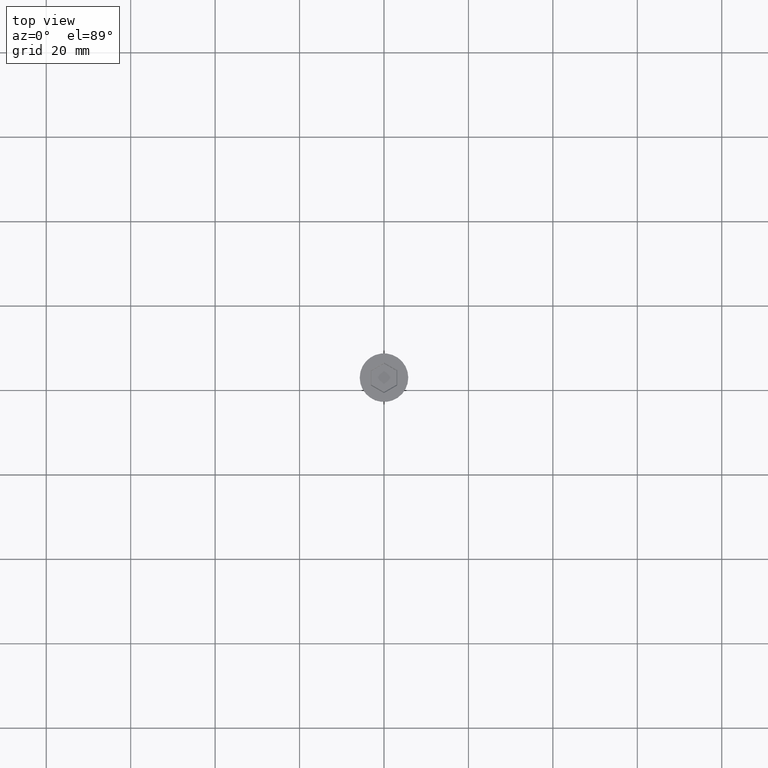
[diagram: clean part render]
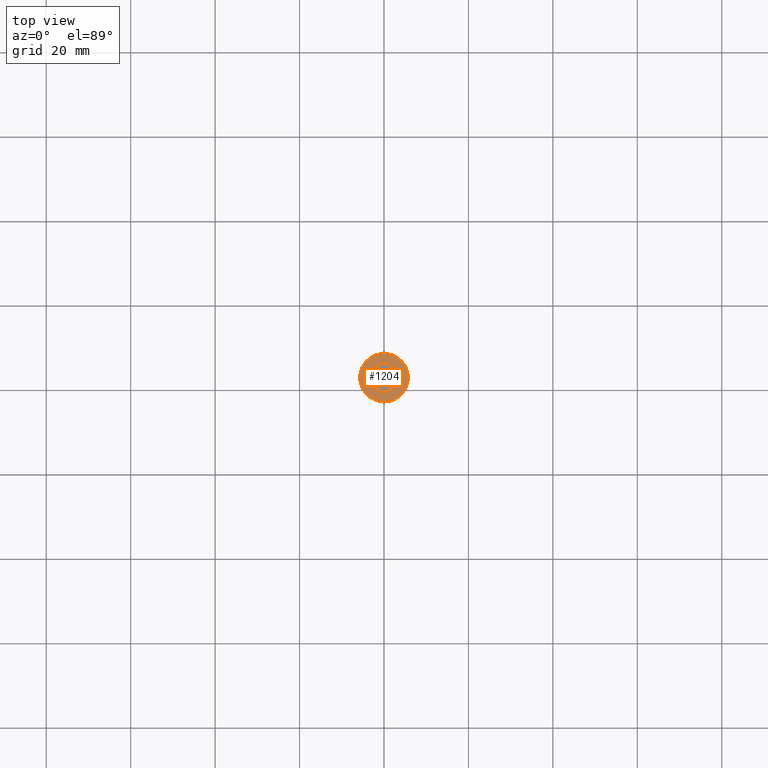
[diagram: same view with one face highlighted and labeled with its STEP entity id]
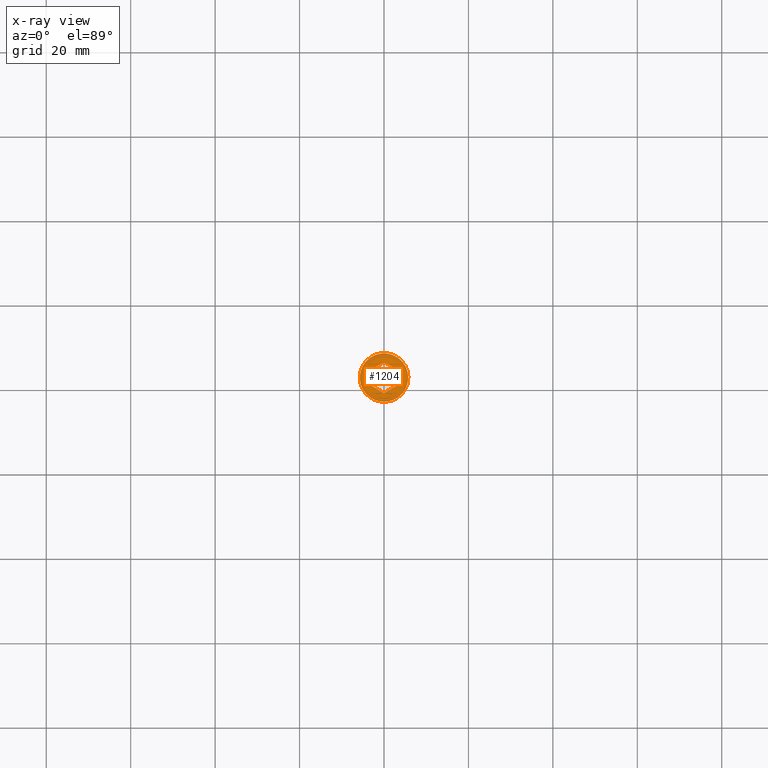
[diagram: x-ray of the same camera — body ghosted, the highlighted face saturated]
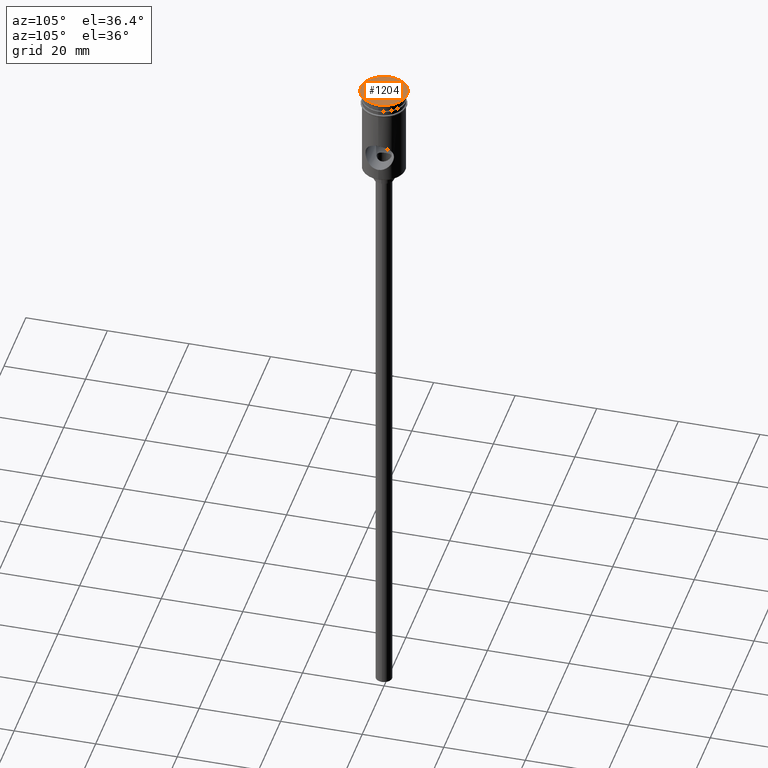
[diagram: same view with one face highlighted and labeled with its STEP entity id]
A machine part, top view. The second image highlights one B-rep face of the part: STEP entity #1204.
The next image is the same camera in x-ray: the body ghosted, the highlighted face saturated — about 0% of this face is hidden behind the body in this view.
A second angle (auxiliary view) of the same face is appended — the face is thin or edge-on in the first view.
In plain terms, the highlighted planar face has unit normal (0, -0, 1).
Its self-contained STEP definition (entity closure, byte-faithful):
#29 = EDGE_CURVE ( 'NONE', #233, #1443, #278, .T. ) ;
#35 = ORIENTED_EDGE ( 'NONE', *, *, #29, .T. ) ;
#42 = ORIENTED_EDGE ( 'NONE', *, *, #818, .T. ) ;
#43 = CARTESIAN_POINT ( 'NONE',  ( -3.149999999999978595, 1.703183294109395840, 0.000000000000000000 ) ) ;
#45 = ORIENTED_EDGE ( 'NONE', *, *, #702, .T. ) ;
#47 = VECTOR ( 'NONE', #1313, 1000.000000000000114 ) ;
#52 = EDGE_CURVE ( 'NONE', #874, #381, #643, .T. ) ;
#77 = FACE_BOUND ( 'NONE', #593, .T. ) ;
#142 = ORIENTED_EDGE ( 'NONE', *, *, #810, .T. ) ;
#157 = ORIENTED_EDGE ( 'NONE', *, *, #343, .T. ) ;
#174 = CARTESIAN_POINT ( 'NONE',  ( 3.149999999999979039, 1.818653347947308596, 0.000000000000000000 ) ) ;
#181 = CIRCLE ( 'NONE', #1403, 5.750000000000000000 ) ;
#186 = VERTEX_POINT ( 'NONE', #532 ) ;
#189 = CARTESIAN_POINT ( 'NONE',  ( 0.000000000000000000, 0.000000000000000000, 0.000000000000000000 ) ) ;
#233 = VERTEX_POINT ( 'NONE', #1371 ) ;
#244 = CARTESIAN_POINT ( 'NONE',  ( -3.149999999999978595, -1.818653347947308818, 0.000000000000000000 ) ) ;
#276 = CARTESIAN_POINT ( 'NONE',  ( 3.149999999999978151, -1.818653347947309262, 0.000000000000000000 ) ) ;
#278 = CIRCLE ( 'NONE', #1113, 5.750000000000000000 ) ;
#295 = LINE ( 'NONE', #980, #47 ) ;
#304 = LINE ( 'NONE', #957, #860 ) ;
#343 = EDGE_CURVE ( 'NONE', #722, #874, #823, .T. ) ;
#381 = VERTEX_POINT ( 'NONE', #276 ) ;
#399 = CARTESIAN_POINT ( 'NONE',  ( -3.163467028841980443E-16, 3.637306695894617192, 0.000000000000000000 ) ) ;
#405 = DIRECTION ( 'NONE',  ( 0.8660254037844385966, 0.5000000000000001110, 0.000000000000000000 ) ) ;
#450 = EDGE_CURVE ( 'NONE', #381, #645, #879, .T. ) ;
#486 = DIRECTION ( 'NONE',  ( -2.546295930062981593E-16, -1.000000000000000000, 0.000000000000000000 ) ) ;
#487 = VECTOR ( 'NONE', #580, 1000.000000000000000 ) ;
#520 = CARTESIAN_POINT ( 'NONE',  ( 0.000000000000000000, 0.000000000000000000, 0.000000000000000000 ) ) ;
#532 = CARTESIAN_POINT ( 'NONE',  ( -3.149999999999978595, 1.818653347947308374, 0.000000000000000000 ) ) ;
#580 = DIRECTION ( 'NONE',  ( 0.8660254037844387076, -0.4999999999999998890, 0.000000000000000000 ) ) ;
#593 = EDGE_LOOP ( 'NONE', ( #42, #45, #1147, #157, #878, #608 ) ) ;
#608 = ORIENTED_EDGE ( 'NONE', *, *, #450, .T. ) ;
#643 = LINE ( 'NONE', #1096, #660 ) ;
#645 = VERTEX_POINT ( 'NONE', #1297 ) ;
#646 = PLANE ( 'NONE',  #1384 ) ;
#660 = VECTOR ( 'NONE', #486, 1000.000000000000000 ) ;
#675 = FACE_OUTER_BOUND ( 'NONE', #1131, .T. ) ;
#676 = VERTEX_POINT ( 'NONE', #244 ) ;
#702 = EDGE_CURVE ( 'NONE', #676, #186, #939, .T. ) ;
#722 = VERTEX_POINT ( 'NONE', #399 ) ;
#744 = EDGE_CURVE ( 'NONE', #186, #722, #304, .T. ) ;
#810 = EDGE_CURVE ( 'NONE', #1443, #233, #181, .T. ) ;
#818 = EDGE_CURVE ( 'NONE', #645, #676, #295, .T. ) ;
#823 = LINE ( 'NONE', #1277, #487 ) ;
#860 = VECTOR ( 'NONE', #405, 1000.000000000000114 ) ;
#874 = VERTEX_POINT ( 'NONE', #174 ) ;
#878 = ORIENTED_EDGE ( 'NONE', *, *, #52, .T. ) ;
#879 = LINE ( 'NONE', #1081, #1115 ) ;
#901 = CARTESIAN_POINT ( 'NONE',  ( 0.000000000000000000, 0.000000000000000000, 0.000000000000000000 ) ) ;
#919 = DIRECTION ( 'NONE',  ( 0.000000000000000000, 1.000000000000000000, 0.000000000000000000 ) ) ;
#939 = LINE ( 'NONE', #43, #1235 ) ;
#952 = DIRECTION ( 'NONE',  ( 1.000000000000000000, 0.000000000000000000, 0.000000000000000000 ) ) ;
#957 = CARTESIAN_POINT ( 'NONE',  ( -0.09999999999998937517, 3.579571668975661147, 0.000000000000000000 ) ) ;
#977 = DIRECTION ( 'NONE',  ( -0.000000000000000000, -0.000000000000000000, 1.000000000000000000 ) ) ;
#980 = CARTESIAN_POINT ( 'NONE',  ( -3.049999999999989608, -1.876388374866265085, 0.000000000000000000 ) ) ;
#1081 = CARTESIAN_POINT ( 'NONE',  ( 0.09999999999998870903, -3.579571668975661591, 0.000000000000000000 ) ) ;
#1096 = CARTESIAN_POINT ( 'NONE',  ( 3.149999999999978151, -1.703183294109396284, 0.000000000000000000 ) ) ;
#1100 = DIRECTION ( 'NONE',  ( 1.000000000000000000, 0.000000000000000000, 0.000000000000000000 ) ) ;
#1113 = AXIS2_PLACEMENT_3D ( 'NONE', #520, #977, #1428 ) ;
#1115 = VECTOR ( 'NONE', #1414, 1000.000000000000000 ) ;
#1131 = EDGE_LOOP ( 'NONE', ( #142, #35 ) ) ;
#1147 = ORIENTED_EDGE ( 'NONE', *, *, #744, .T. ) ;
#1188 = DIRECTION ( 'NONE',  ( -0.000000000000000000, -0.000000000000000000, 1.000000000000000000 ) ) ;
#1204 = ADVANCED_FACE ( 'NONE', ( #77, #675 ), #646, .T. ) ;
#1221 = DIRECTION ( 'NONE',  ( 0.000000000000000000, -0.000000000000000000, 1.000000000000000000 ) ) ;
#1235 = VECTOR ( 'NONE', #919, 1000.000000000000000 ) ;
#1277 = CARTESIAN_POINT ( 'NONE',  ( 3.049999999999990052, 1.876388374866264863, 0.000000000000000000 ) ) ;
#1297 = CARTESIAN_POINT ( 'NONE',  ( -5.257856505504653693E-16, -3.637306695894617636, 0.000000000000000000 ) ) ;
#1313 = DIRECTION ( 'NONE',  ( -0.8660254037844385966, 0.5000000000000001110, 0.000000000000000000 ) ) ;
#1315 = CARTESIAN_POINT ( 'NONE',  ( 5.750000000000000000, 0.000000000000000000, 0.000000000000000000 ) ) ;
#1371 = CARTESIAN_POINT ( 'NONE',  ( -5.750000000000000000, 7.041719095097280880E-16, 0.000000000000000000 ) ) ;
#1384 = AXIS2_PLACEMENT_3D ( 'NONE', #901, #1221, #1100 ) ;
#1403 = AXIS2_PLACEMENT_3D ( 'NONE', #189, #1188, #952 ) ;
#1414 = DIRECTION ( 'NONE',  ( -0.8660254037844387076, -0.4999999999999998890, 0.000000000000000000 ) ) ;
#1428 = DIRECTION ( 'NONE',  ( 1.000000000000000000, 0.000000000000000000, 0.000000000000000000 ) ) ;
#1443 = VERTEX_POINT ( 'NONE', #1315 ) ;